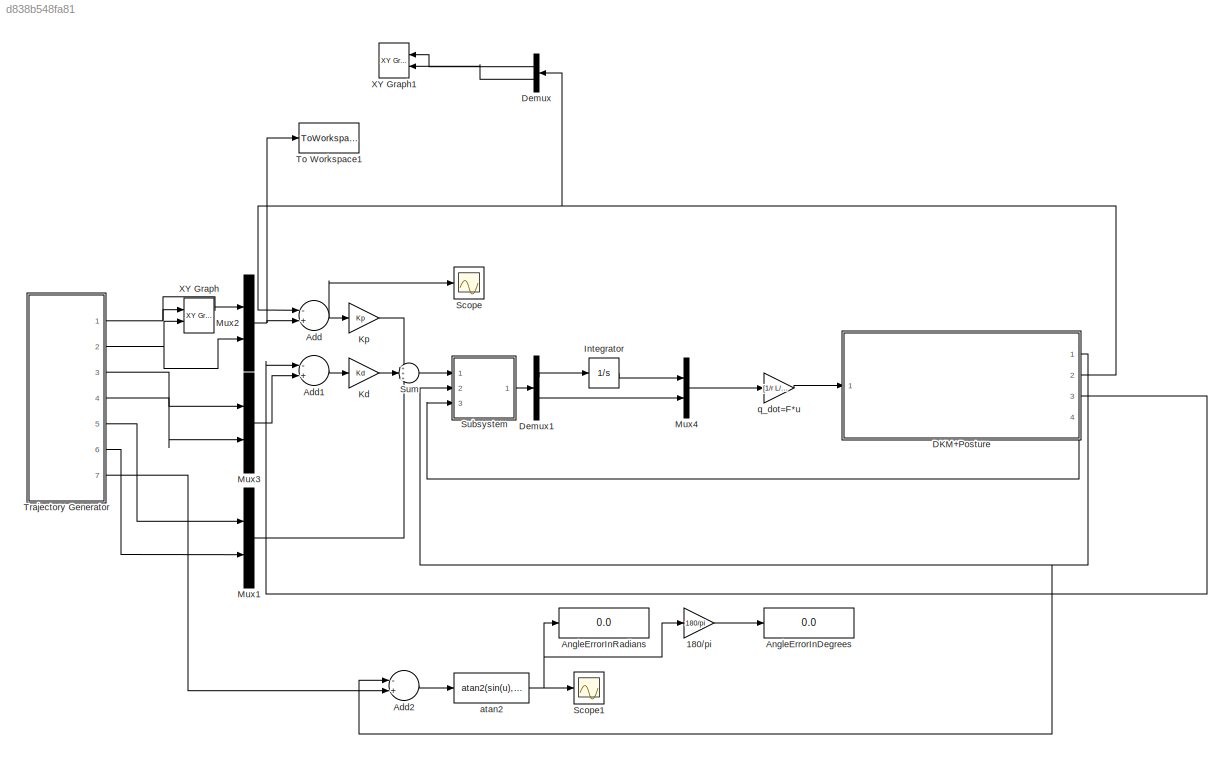
MODEL slx_d838b548fa81
KIND model
CONFIG AbsTol = auto
CONFIG FixedStep = 0.001
CONFIG MaxStep = auto
CONFIG MinStep = auto
CONFIG RelTol = 1e-3
CONFIG SampleTimeConstraint = Unconstrained
CONFIG Solver = ode4
CONFIG SolverMode = Auto
CONFIG SolverName = ode4
CONFIG StartTime = 0.0
CONFIG StopTime = 20
BLOCK [Gain] 180//pi
  Gain = 180/pi
  Multiplication = Matrix(K*u)
  OutDataTypeStr = Inherit: Inherit via internal rule
  ParamDataTypeStr = Inherit: Inherit via internal rule
  SaturateOnIntegerOverflow = off
BLOCK [Sum] Add
  InputSameDT = off
  Inputs = -+
  OutDataTypeStr = Inherit: Inherit via internal rule
  Ports = [2, 1]
  SaturateOnIntegerOverflow = off
BLOCK [Sum] Add1
  InputSameDT = off
  Inputs = -+
  OutDataTypeStr = Inherit: Inherit via internal rule
  Ports = [2, 1]
  SaturateOnIntegerOverflow = off
BLOCK [Sum] Add2
  InputSameDT = off
  Inputs = -+
  OutDataTypeStr = Inherit: Inherit via internal rule
  Ports = [2, 1]
  SaturateOnIntegerOverflow = off
BLOCK [Display] AngleErrorInDegrees
  Decimation = 1
  Ports = [1]
BLOCK [Display] AngleErrorInRadians
  Decimation = 1
  Ports = [1]
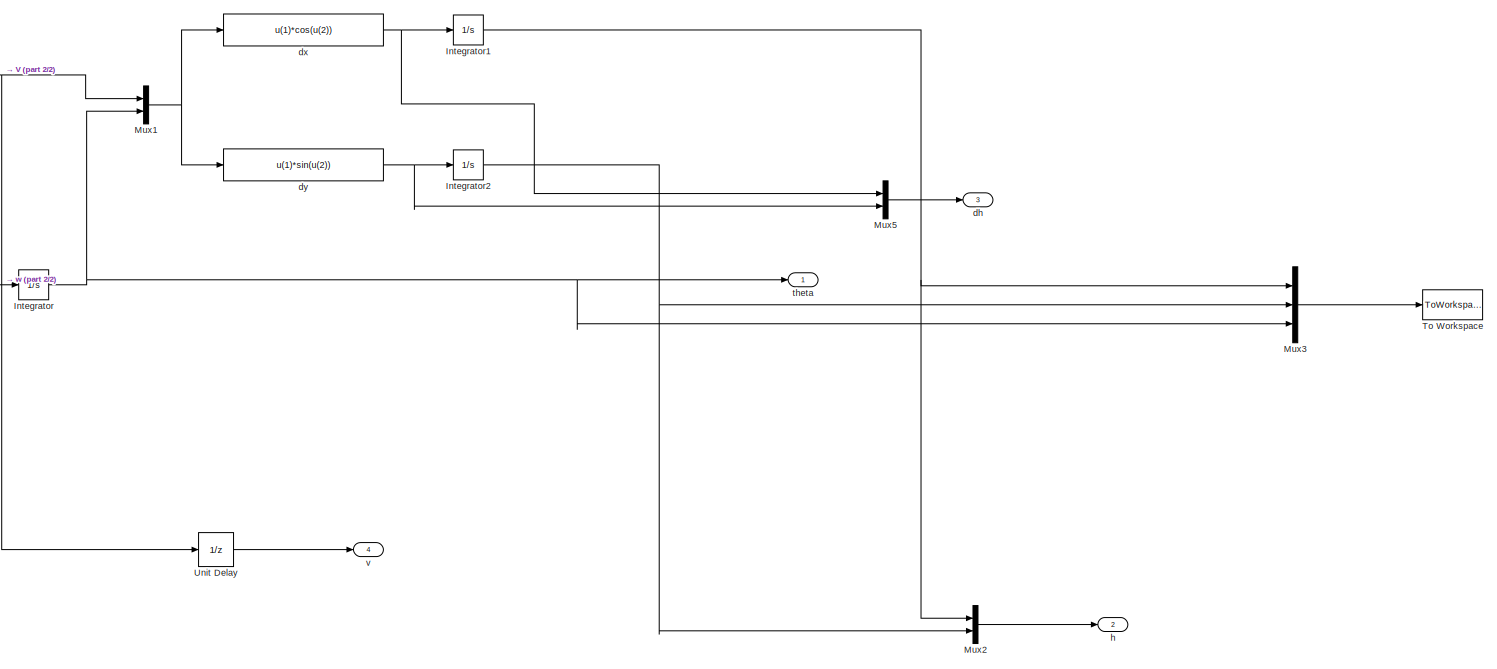
[diagram: DKM+Posture - part 1/2, most of the canvas]
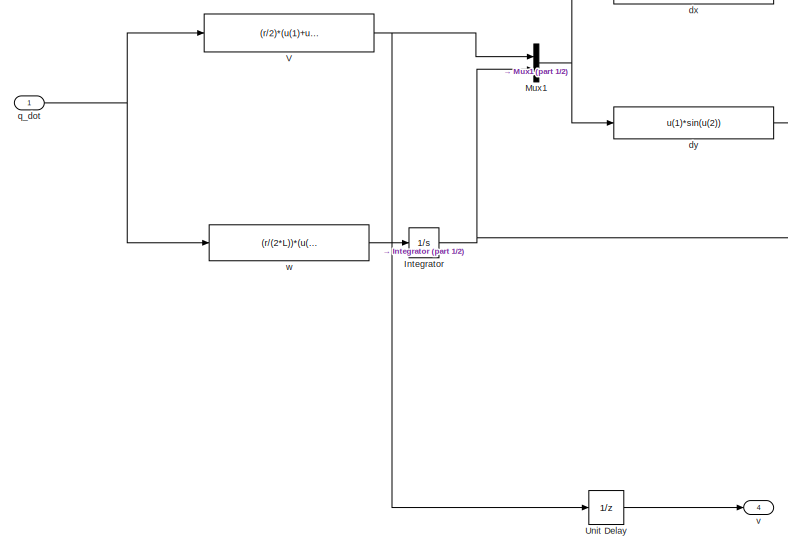
[diagram: DKM+Posture - part 2/2, left side, full height]
BLOCK [SubSystem] DKM+Posture
  Ports = [1, 4]
  RequestExecContextInheritance = off
  Variant = off
BLOCK [Integrator] DKM+Posture/Integrator
  InitialCondition = pi
  Ports = [1, 1]
BLOCK [Integrator] DKM+Posture/Integrator1
  InitialCondition = 2.3
  Ports = [1, 1]
BLOCK [Integrator] DKM+Posture/Integrator2
  Ports = [1, 1]
BLOCK [Mux] DKM+Posture/Mux1
  DisplayOption = bar
  Inputs = 2
  Ports = [2, 1]
BLOCK [Mux] DKM+Posture/Mux2
  DisplayOption = bar
  Inputs = 2
  Ports = [2, 1]
BLOCK [Mux] DKM+Posture/Mux3
  DisplayOption = bar
  Inputs = 3
  Ports = [3, 1]
BLOCK [Mux] DKM+Posture/Mux5
  DisplayOption = bar
  Inputs = 2
  Ports = [2, 1]
BLOCK [ToWorkspace] DKM+Posture/To Workspace
  FixptAsFi = on
  MaxDataPoints = inf
  Ports = [1]
  SampleTime = -1
  Save2DSignal = 3-D array (concatenate along third dimension)
  VariableName = output
BLOCK [UnitDelay] DKM+Posture/Unit Delay
  InputProcessing = Elements as channels (sample based)
  SampleTime = -1
BLOCK [Fcn] DKM+Posture/V
  Expr = (r/2)*(u(1)+u(2))
BLOCK [Outport] DKM+Posture/dh
  IconDisplay = Port number
  Port = 3
BLOCK [Fcn] DKM+Posture/dx
  Expr = u(1)*cos(u(2))
BLOCK [Fcn] DKM+Posture/dy
  Expr = u(1)*sin(u(2))
BLOCK [Outport] DKM+Posture/h
  IconDisplay = Port number
  Port = 2
BLOCK [Inport] DKM+Posture/q_dot
  IconDisplay = Port number
BLOCK [Outport] DKM+Posture/theta
  IconDisplay = Port number
BLOCK [Outport] DKM+Posture/v
  IconDisplay = Port number
  Port = 4
BLOCK [Fcn] DKM+Posture/w
  Expr = (r/(2*L))*(u(1)-u(2))
BLOCK [Demux] Demux
  DisplayOption = bar
  Outputs = 2
  Ports = [1, 2]
BLOCK [Demux] Demux1
  DisplayOption = bar
  Outputs = 2
  Ports = [1, 2]
BLOCK [Integrator] Integrator
  Ports = [1, 1]
BLOCK [Gain] Kd
  Gain = Kd
  Multiplication = Matrix(K*u)
  OutDataTypeStr = Inherit: Inherit via internal rule
  ParamDataTypeStr = Inherit: Inherit via internal rule
  SaturateOnIntegerOverflow = off
BLOCK [Gain] Kp
  Gain = Kp
  Multiplication = Matrix(K*u)
  OutDataTypeStr = Inherit: Inherit via internal rule
  ParamDataTypeStr = Inherit: Inherit via internal rule
  SaturateOnIntegerOverflow = off
BLOCK [Mux] Mux1
  DisplayOption = bar
  Inputs = 2
  Ports = [2, 1]
BLOCK [Mux] Mux2
  DisplayOption = bar
  Inputs = 2
  Ports = [2, 1]
BLOCK [Mux] Mux3
  DisplayOption = bar
  Inputs = 2
  Ports = [2, 1]
BLOCK [Mux] Mux4
  DisplayOption = bar
  Inputs = 2
  Ports = [2, 1]
BLOCK [Scope] Scope
  DataFormat = StructureWithTime
  Decimation = 1
  Grid = on
  LimitDataPoints = off
  MaxDataPoints = 5000
  Ports = [1]
  SampleInput = off
  SampleTime = -1
  SaveName = ScopeData
  SaveToWorkspace = off
  ShowLegends = off
  TickLabels = OneTimeTick
  TimeRange = auto
  YMax = 0.04431
  YMin = -0.04865
  ZoomMode = on
BLOCK [Scope] Scope1
  DataFormat = StructureWithTime
  Decimation = 1
  Grid = on
  LimitDataPoints = off
  MaxDataPoints = 5000
  Ports = [1]
  SampleInput = off
  SampleTime = -1
  SaveName = ScopeData1
  SaveToWorkspace = off
  ShowLegends = off
  TickLabels = OneTimeTick
  TimeRange = auto
  YMax = 336.4641
  YMin = 304.4199
  ZoomMode = on
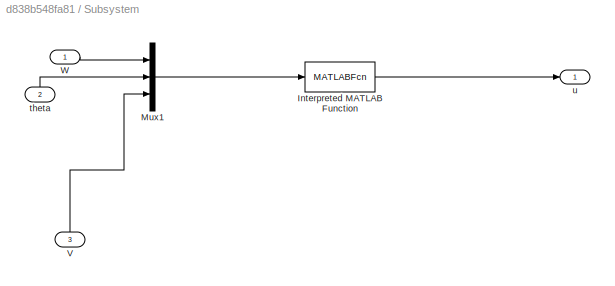
BLOCK [SubSystem] Subsystem
  Ports = [3, 1]
  RequestExecContextInheritance = off
  Variant = off
BLOCK [MATLABFcn] Subsystem/Interpreted MATLAB Function
  MATLABFcn = F_invW_1(u)
  Output1D = off
  OutputDimensions = [2 1]
  OutputSignalType = real
  Ports = [1, 1]
BLOCK [Mux] Subsystem/Mux1
  DisplayOption = bar
  Inputs = 3
  Ports = [3, 1]
BLOCK [Inport] Subsystem/V
  IconDisplay = Port number
  Port = 3
BLOCK [Inport] Subsystem/W
  IconDisplay = Port number
BLOCK [Inport] Subsystem/theta
  IconDisplay = Port number
  Port = 2
BLOCK [Outport] Subsystem/u
  IconDisplay = Port number
BLOCK [Sum] Sum
  IconShape = round
  InputSameDT = off
  Inputs = +++
  OutDataTypeStr = Inherit: Inherit via internal rule
  Ports = [3, 1]
  SaturateOnIntegerOverflow = off
BLOCK [ToWorkspace] To Workspace1
  FixptAsFi = on
  MaxDataPoints = inf
  Ports = [1]
  SampleTime = -1
  Save2DSignal = 3-D array (concatenate along third dimension)
  VariableName = simout1
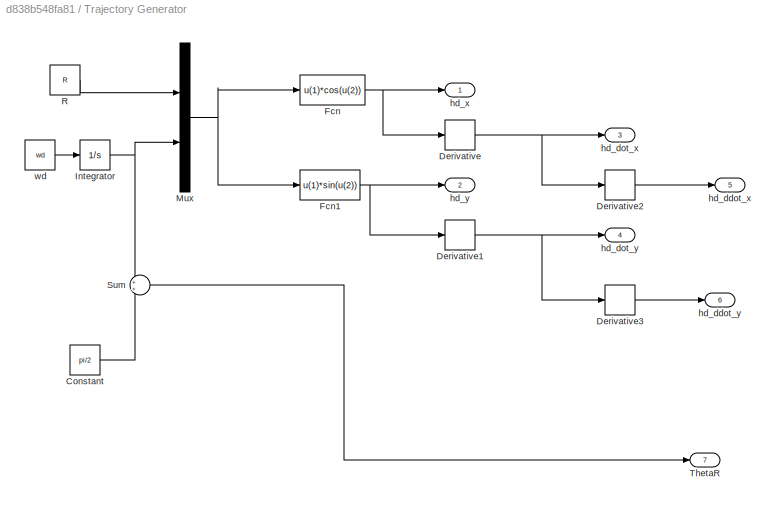
BLOCK [SubSystem] Trajectory Generator
  Ports = [0, 7]
  RequestExecContextInheritance = off
  Variant = off
BLOCK [Constant] Trajectory Generator/Constant
  Value = pi/2
BLOCK [Derivative] Trajectory Generator/Derivative
BLOCK [Derivative] Trajectory Generator/Derivative1
BLOCK [Derivative] Trajectory Generator/Derivative2
BLOCK [Derivative] Trajectory Generator/Derivative3
BLOCK [Fcn] Trajectory Generator/Fcn
  Expr = u(1)*cos(u(2))
BLOCK [Fcn] Trajectory Generator/Fcn1
  Expr = u(1)*sin(u(2))
BLOCK [Integrator] Trajectory Generator/Integrator
  Ports = [1, 1]
BLOCK [Mux] Trajectory Generator/Mux
  DisplayOption = bar
  Inputs = 2
  Ports = [2, 1]
BLOCK [Constant] Trajectory Generator/R
  Value = R
BLOCK [Sum] Trajectory Generator/Sum
  IconShape = round
  InputSameDT = off
  OutDataTypeStr = Inherit: Inherit via internal rule
  Ports = [2, 1]
  SaturateOnIntegerOverflow = off
BLOCK [Outport] Trajectory Generator/ThetaR
  IconDisplay = Port number
  Port = 7
BLOCK [Outport] Trajectory Generator/hd_ddot_x
  IconDisplay = Port number
  Port = 5
BLOCK [Outport] Trajectory Generator/hd_ddot_y
  IconDisplay = Port number
  Port = 6
BLOCK [Outport] Trajectory Generator/hd_dot_x
  IconDisplay = Port number
  Port = 3
BLOCK [Outport] Trajectory Generator/hd_dot_y
  IconDisplay = Port number
  Port = 4
BLOCK [Outport] Trajectory Generator/hd_x
  IconDisplay = Port number
BLOCK [Outport] Trajectory Generator/hd_y
  IconDisplay = Port number
  Port = 2
BLOCK [Constant] Trajectory Generator/wd
  Value = wd
BLOCK [Reference] XY Graph  REF=simulink/Sinks/XY Graph
  Ports = [2]
  SourceBlock = simulink/Sinks/XY Graph
  SourceType = XY scope.
  st = -1
  xmax = 2.3
  xmin = -2.3
  ymax = 2.3
  ymin = -2.3
BLOCK [Reference] XY Graph1  REF=simulink/Sinks/XY Graph
  Ports = [2]
  SourceBlock = simulink/Sinks/XY Graph
  SourceType = XY scope.
  st = -1
  xmax = 2.3
  xmin = -2.3
  ymax = 2.3
  ymin = -2.3
BLOCK [Fcn] atan2
  Expr = atan2(sin(u),cos(u))
BLOCK [Gain] q_dot=F*u
  Gain = [1/r L/r;1/r -L/r]
  Multiplication = Matrix(K*u)
  OutDataTypeStr = Inherit: Inherit via internal rule
  ParamDataTypeStr = Inherit: Inherit via internal rule
  SaturateOnIntegerOverflow = off
LINE 180//pi:1 -> AngleErrorInDegrees:1
LINE Add1:1 -> Kd:1
LINE Add2:1 -> atan2:1
NET Add:1 -> Kp:1, Scope:1
NET DKM+Posture/Integrator1:1 -> DKM+Posture/Mux2:1, DKM+Posture/Mux3:1
NET DKM+Posture/Integrator2:1 -> DKM+Posture/Mux2:2, DKM+Posture/Mux3:2
NET DKM+Posture/Integrator:1 -> DKM+Posture/Mux1:2, DKM+Posture/Mux3:3, DKM+Posture/theta:1
NET DKM+Posture/Mux1:1 -> DKM+Posture/dx:1, DKM+Posture/dy:1
LINE DKM+Posture/Mux2:1 -> DKM+Posture/h:1
LINE DKM+Posture/Mux3:1 -> DKM+Posture/To Workspace:1
LINE DKM+Posture/Mux5:1 -> DKM+Posture/dh:1
LINE DKM+Posture/Unit Delay:1 -> DKM+Posture/v:1
NET DKM+Posture/V:1 -> DKM+Posture/Mux1:1, DKM+Posture/Unit Delay:1
NET DKM+Posture/dx:1 -> DKM+Posture/Integrator1:1, DKM+Posture/Mux5:1
NET DKM+Posture/dy:1 -> DKM+Posture/Integrator2:1, DKM+Posture/Mux5:2
NET DKM+Posture/q_dot:1 -> DKM+Posture/V:1, DKM+Posture/w:1
LINE DKM+Posture/w:1 -> DKM+Posture/Integrator:1
NET DKM+Posture:1 -> Add2:1, Subsystem:2
NET DKM+Posture:2 -> Add:1, Demux:1
LINE DKM+Posture:3 -> Add1:1
LINE DKM+Posture:4 -> Subsystem:3
LINE Demux1:1 -> Integrator:1
LINE Demux1:2 -> Mux4:2
LINE Demux:1 -> XY Graph1:1
LINE Demux:2 -> XY Graph1:2
LINE Integrator:1 -> Mux4:1
LINE Kd:1 -> Sum:2
LINE Kp:1 -> Sum:1
LINE Mux1:1 -> Sum:3
NET Mux2:1 -> Add:2, To Workspace1:1
LINE Mux3:1 -> Add1:2
LINE Mux4:1 -> q_dot=F*u:1
LINE Subsystem/Interpreted MATLAB Function:1 -> Subsystem/u:1
LINE Subsystem/Mux1:1 -> Subsystem/Interpreted MATLAB Function:1
LINE Subsystem/V:1 -> Subsystem/Mux1:3
LINE Subsystem/W:1 -> Subsystem/Mux1:1
LINE Subsystem/theta:1 -> Subsystem/Mux1:2
LINE Subsystem:1 -> Demux1:1
LINE Sum:1 -> Subsystem:1
LINE Trajectory Generator/Constant:1 -> Trajectory Generator/Sum:2
NET Trajectory Generator/Derivative1:1 -> Trajectory Generator/Derivative3:1, Trajectory Generator/hd_dot_y:1
LINE Trajectory Generator/Derivative2:1 -> Trajectory Generator/hd_ddot_x:1
LINE Trajectory Generator/Derivative3:1 -> Trajectory Generator/hd_ddot_y:1
NET Trajectory Generator/Derivative:1 -> Trajectory Generator/Derivative2:1, Trajectory Generator/hd_dot_x:1
NET Trajectory Generator/Fcn1:1 -> Trajectory Generator/Derivative1:1, Trajectory Generator/hd_y:1
NET Trajectory Generator/Fcn:1 -> Trajectory Generator/Derivative:1, Trajectory Generator/hd_x:1
NET Trajectory Generator/Integrator:1 -> Trajectory Generator/Mux:2, Trajectory Generator/Sum:1
NET Trajectory Generator/Mux:1 -> Trajectory Generator/Fcn1:1, Trajectory Generator/Fcn:1
LINE Trajectory Generator/R:1 -> Trajectory Generator/Mux:1
LINE Trajectory Generator/Sum:1 -> Trajectory Generator/ThetaR:1
LINE Trajectory Generator/wd:1 -> Trajectory Generator/Integrator:1
NET Trajectory Generator:1 -> Mux2:1, XY Graph:1
NET Trajectory Generator:2 -> Mux2:2, XY Graph:2
LINE Trajectory Generator:3 -> Mux3:1
LINE Trajectory Generator:4 -> Mux3:2
LINE Trajectory Generator:5 -> Mux1:1
LINE Trajectory Generator:6 -> Mux1:2
LINE Trajectory Generator:7 -> Add2:2
NET atan2:1 -> 180//pi:1, AngleErrorInRadians:1, Scope1:1
LINE q_dot=F*u:1 -> DKM+Posture:1
note: NET lines group one-source signal fan-out (src -> all destinations, sorted); 1:1 wires keep LINE
